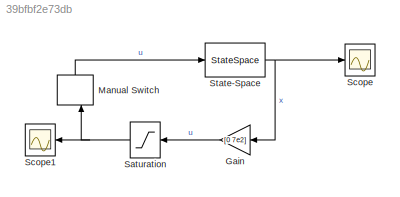
MODEL slx_39bfbf2e73db
KIND model
BLOCK [Gain] Gain
  Gain = [0 7e2]
  Multiplication = Matrix(K*u)
  OutDataTypeStr = Inherit: Inherit via internal rule
  ParamDataTypeStr = Inherit: Inherit via internal rule
  SaturateOnIntegerOverflow = off
BLOCK [ManualSwitch] Manual Switch
  CurrentSetting = 0
BLOCK [Saturate] Saturation
  InputPortMap = u0
  LowerLimit = -150
  Ports = [1, 1]
  UpperLimit = 150
BLOCK [Scope] Scope
  DataFormat = StructureWithTime
  Floating = off
  NumInputPorts = 1
  Ports = [1]
  SampleTime = 0
  ShowLegends = off
  TimeRange = 10
BLOCK [Scope] Scope1
  DataFormat = StructureWithTime
  Floating = off
  NumInputPorts = 1
  Ports = [1]
  SampleTime = 0
  SaveName = ScopeData1
  ShowLegends = off
  TimeRange = 10
BLOCK [StateSpace] State-Space
  A = [0 1; -(19.5^2) -2*19.5*0.01]
  B = [0; 1e-4]
  C = [1 0]
  D = 0
  X0 = [-2e-3; 0]
LINE Gain:1 -> Saturation:1
LINE Manual Switch:1 -> State-Space:1
NET Saturation:1 -> Manual Switch:2, Scope1:1
NET State-Space:1 -> Gain:1, Scope:1
note: NET lines group one-source signal fan-out (src -> all destinations, sorted); 1:1 wires keep LINE
